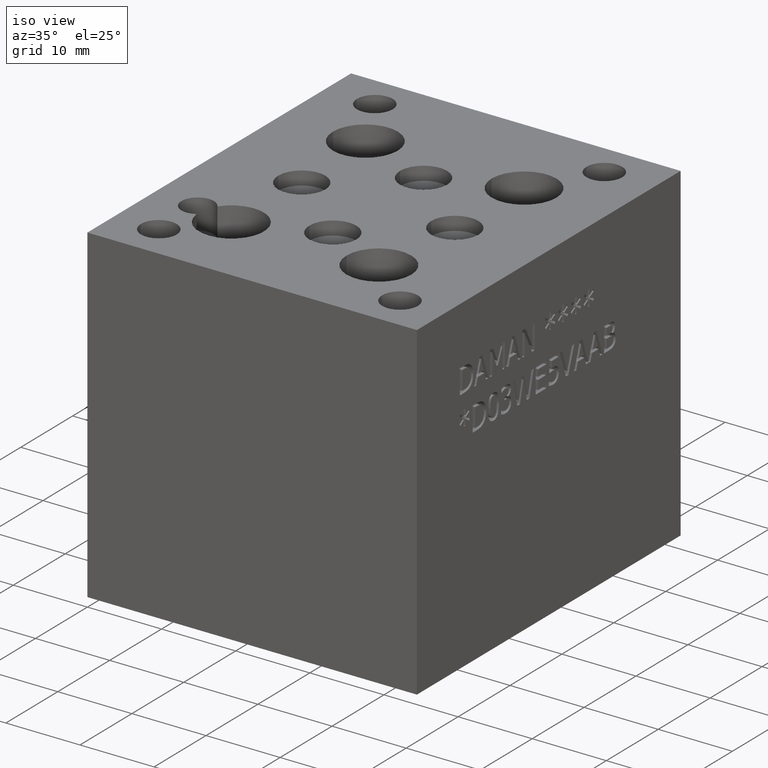
[diagram: clean part render]
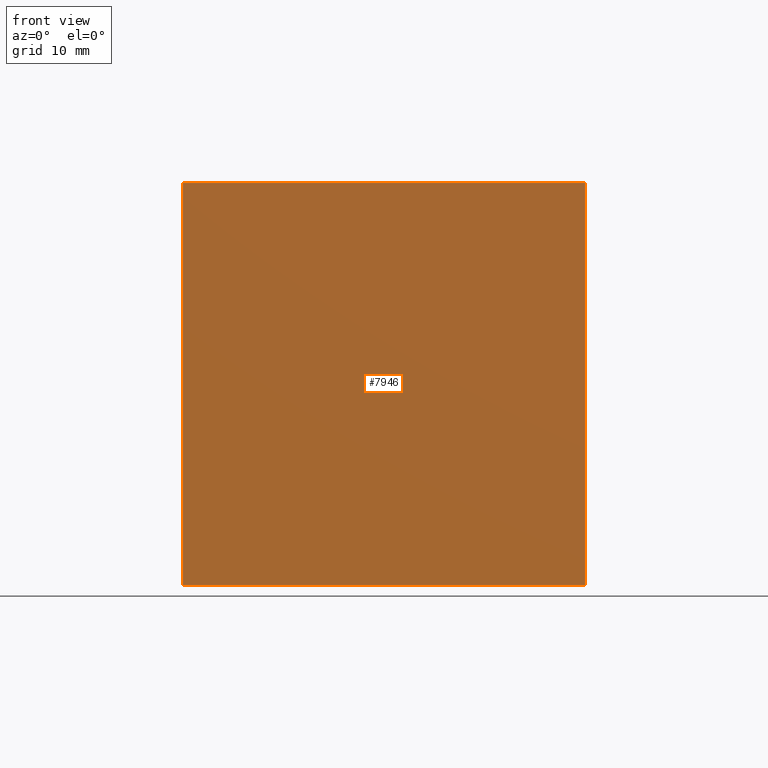
[diagram: tour spotlight — one face highlighted and labeled with its STEP entity id]
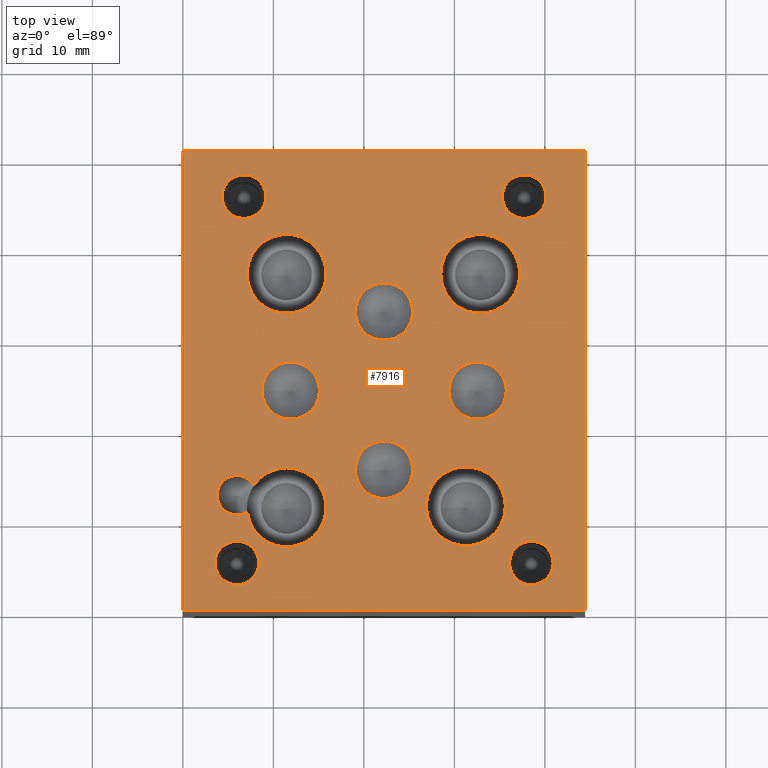
[diagram: tour spotlight — one face highlighted and labeled with its STEP entity id]
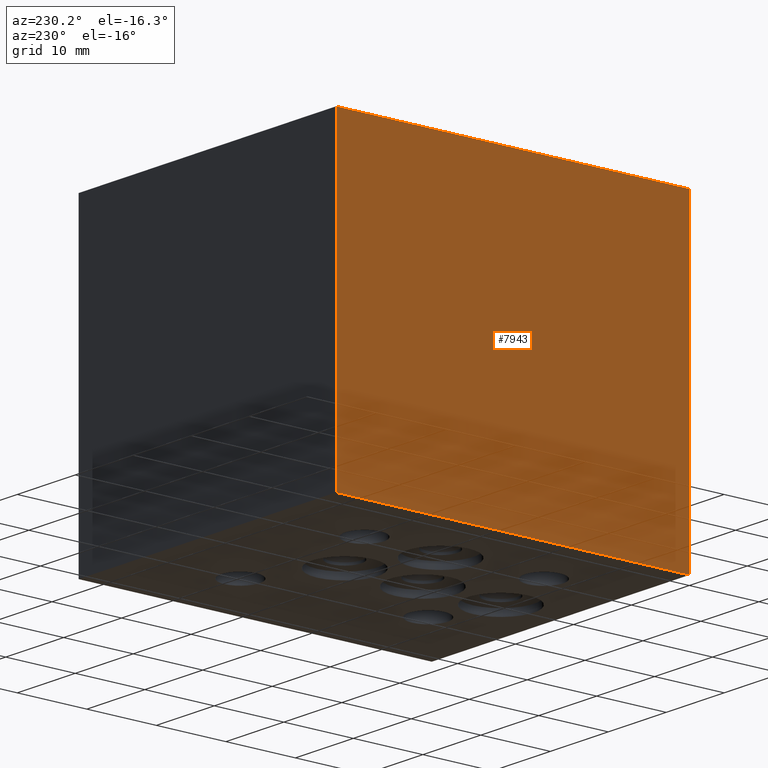
[diagram: tour spotlight — one face highlighted and labeled with its STEP entity id]
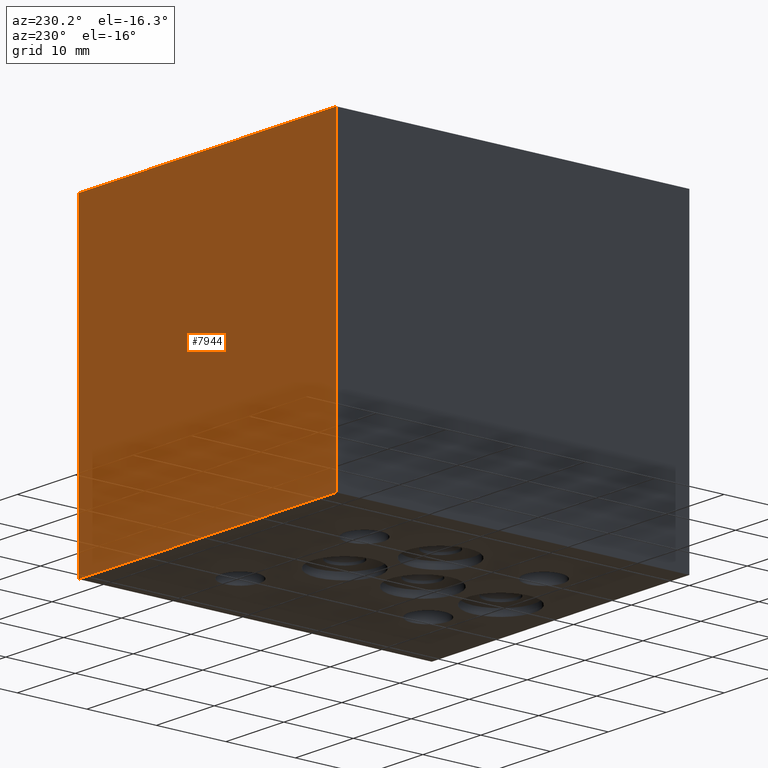
[diagram: tour spotlight — one face highlighted and labeled with its STEP entity id]
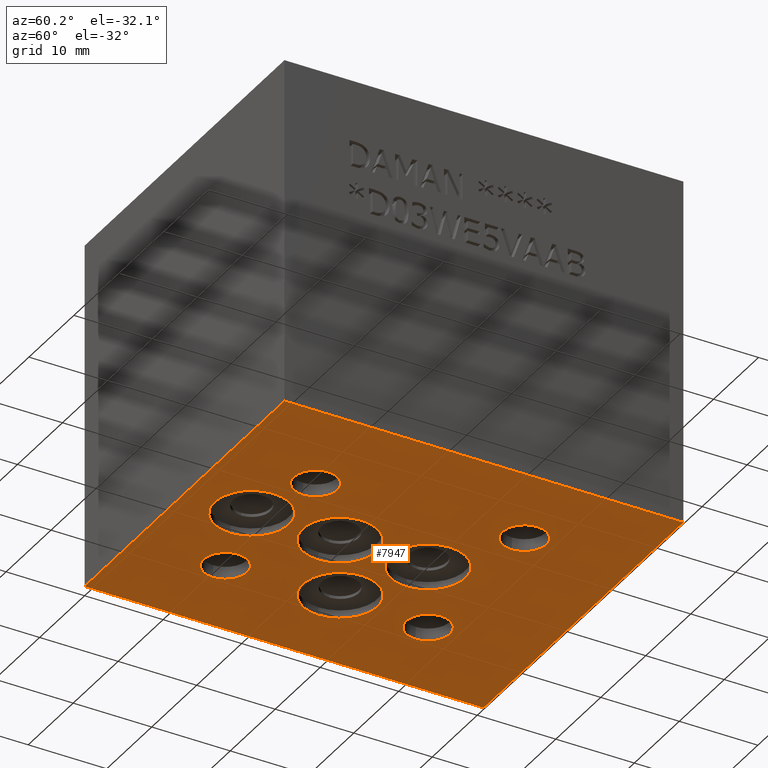
[diagram: tour spotlight — one face highlighted and labeled with its STEP entity id]
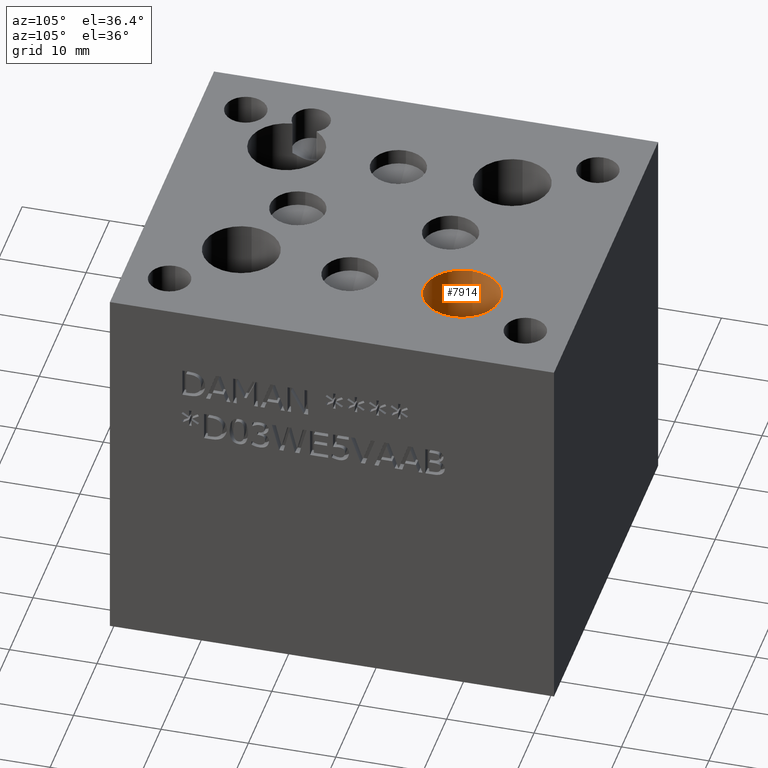
[diagram: tour spotlight — one face highlighted and labeled with its STEP entity id]
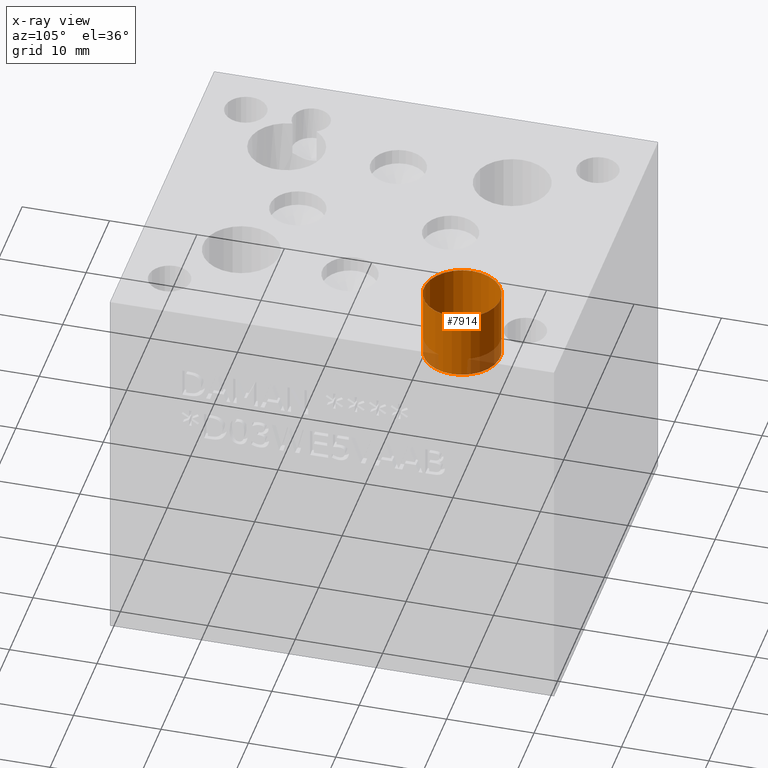
[diagram: x-ray of the same camera — body ghosted, this tour face saturated]
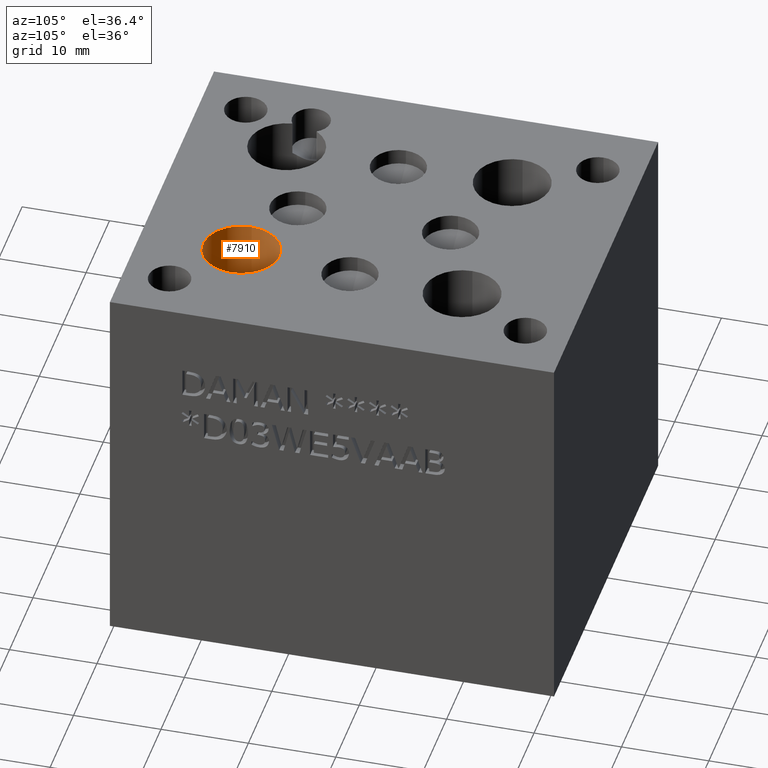
[diagram: tour spotlight — one face highlighted and labeled with its STEP entity id]
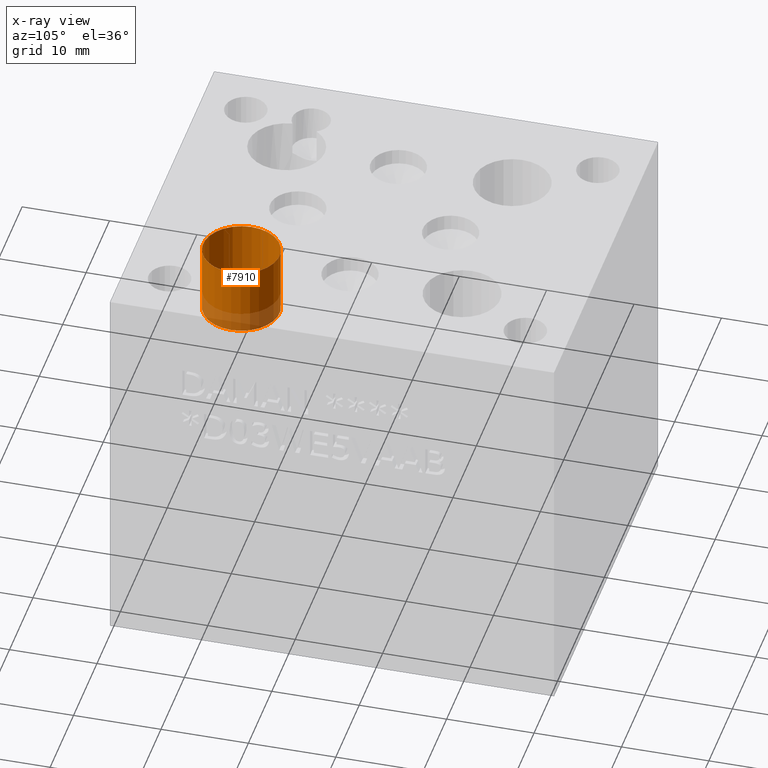
[diagram: x-ray of the same camera — body ghosted, this tour face saturated]
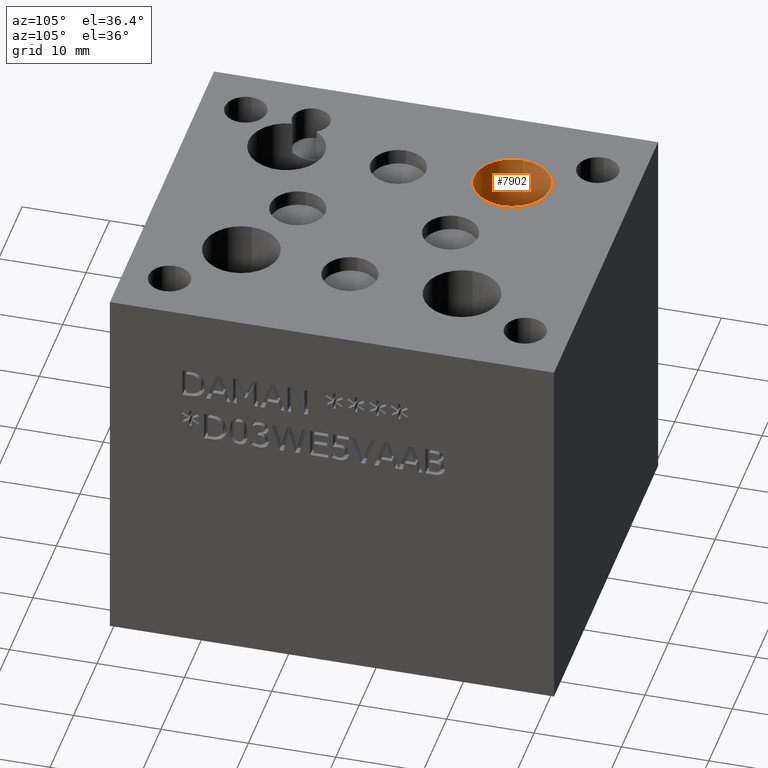
[diagram: tour spotlight — one face highlighted and labeled with its STEP entity id]
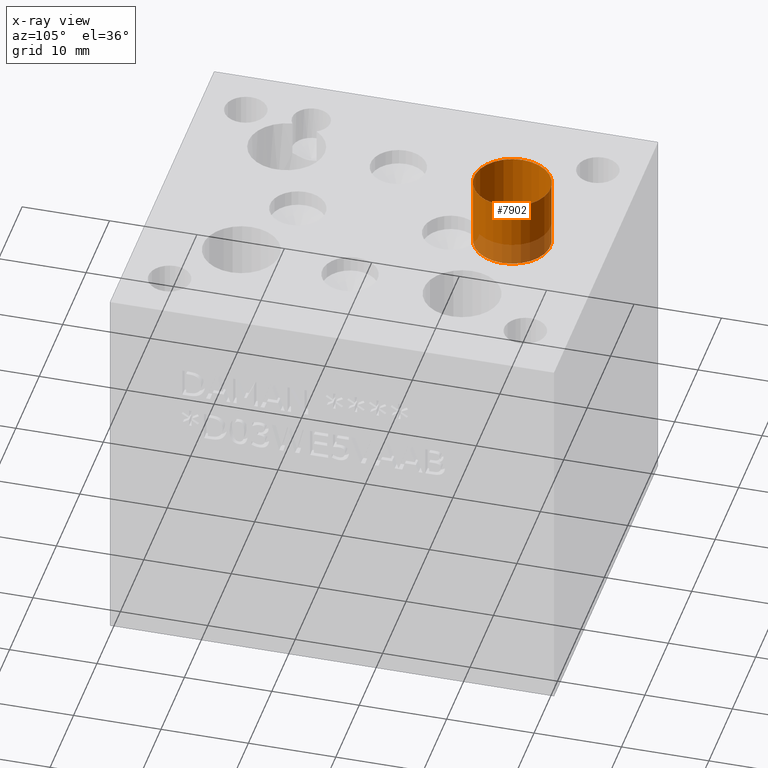
[diagram: x-ray of the same camera — body ghosted, this tour face saturated]
A machine part: a face-by-face anatomy tour. The part has 399 B-rep faces; the first image is the clean iso view, then the 8 largest visible faces are spotlighted one at a time (largest first), each with its STEP entity span.

Face 1 — front view, entity #7946. In plain terms, the highlighted planar face has unit normal (0, -1, 0).
Definition (entity closure, byte-faithful):
#867=FACE_OUTER_BOUND('',#1318,.T.);
#1318=EDGE_LOOP('',(#6935,#6936,#6937,#6938));
#1703=LINE('',#11994,#2519);
#2115=LINE('',#13154,#2931);
#2140=LINE('',#13310,#2956);
#2143=LINE('',#13316,#2959);
#2519=VECTOR('',#9008,10.);
#2931=VECTOR('',#9924,10.);
#2956=VECTOR('',#10097,10.);
#2959=VECTOR('',#10106,10.);
#3296=VERTEX_POINT('',#11987);
#3299=VERTEX_POINT('',#11992);
#3649=VERTEX_POINT('',#13153);
#3706=VERTEX_POINT('',#13308);
#4214=EDGE_CURVE('',#3296,#3299,#1703,.T.);
#4715=EDGE_CURVE('',#3649,#3299,#2115,.T.);
#4787=EDGE_CURVE('',#3706,#3649,#2140,.T.);
#4790=EDGE_CURVE('',#3706,#3296,#2143,.T.);
#6935=ORIENTED_EDGE('',*,*,#4790,.T.);
#6936=ORIENTED_EDGE('',*,*,#4214,.T.);
#6937=ORIENTED_EDGE('',*,*,#4715,.F.);
#6938=ORIENTED_EDGE('',*,*,#4787,.F.);
#7228=PLANE('',#8403);
#7946=ADVANCED_FACE('',(#867),#7228,.T.);
#8403=AXIS2_PLACEMENT_3D('',#13315,#10104,#10105);
#9008=DIRECTION('',(0.,0.,1.));
#9924=DIRECTION('',(1.,0.,0.));
#10097=DIRECTION('',(0.,0.,1.));
#10104=DIRECTION('center_axis',(0.,-1.,0.));
#10105=DIRECTION('ref_axis',(1.,0.,0.));
#10106=DIRECTION('',(1.,0.,0.));
#11987=CARTESIAN_POINT('',(44.45,0.,0.));
#11992=CARTESIAN_POINT('',(44.45,0.,44.45));
#11994=CARTESIAN_POINT('',(44.45,0.,0.));
#13153=CARTESIAN_POINT('',(0.,0.,44.45));
#13154=CARTESIAN_POINT('',(0.,0.,44.45));
#13308=CARTESIAN_POINT('',(0.,0.,0.));
#13310=CARTESIAN_POINT('',(0.,0.,0.));
#13315=CARTESIAN_POINT('Origin',(0.,0.,0.));
#13316=CARTESIAN_POINT('',(0.,0.,0.));

Face 2 — top view, entity #7916. In plain terms, the highlighted planar face has unit normal (0, 0, 1).
Definition (entity closure, byte-faithful):
#84=CIRCLE('',#8291,4.3688);
#85=CIRCLE('',#8292,4.3688);
#91=CIRCLE('',#8302,4.3688);
#97=CIRCLE('',#8312,4.3688);
#98=CIRCLE('',#8313,4.3688);
#104=CIRCLE('',#8323,4.3688);
#105=CIRCLE('',#8324,4.3688);
#106=CIRCLE('',#8327,2.413);
#107=CIRCLE('',#8328,2.413);
#108=CIRCLE('',#8329,2.413);
#109=CIRCLE('',#8330,2.413);
#110=CIRCLE('',#8331,2.413);
#111=CIRCLE('',#8332,2.413);
#112=CIRCLE('',#8333,2.413);
#113=CIRCLE('',#8334,2.413);
#114=CIRCLE('',#8335,2.1844);
#115=CIRCLE('',#8336,3.175);
#116=CIRCLE('',#8337,3.175);
#117=CIRCLE('',#8338,3.175);
#118=CIRCLE('',#8339,3.175);
#119=CIRCLE('',#8340,3.175);
#120=CIRCLE('',#8341,3.175);
#121=CIRCLE('',#8342,3.175);
#122=CIRCLE('',#8343,3.175);
#222=FACE_BOUND('',#1273,.T.);
#223=FACE_BOUND('',#1274,.T.);
#224=FACE_BOUND('',#1275,.T.);
#225=FACE_BOUND('',#1276,.T.);
#226=FACE_BOUND('',#1277,.T.);
#227=FACE_BOUND('',#1278,.T.);
#228=FACE_BOUND('',#1279,.T.);
#229=FACE_BOUND('',#1280,.T.);
#230=FACE_BOUND('',#1281,.T.);
#231=FACE_BOUND('',#1282,.T.);
#232=FACE_BOUND('',#1283,.T.);
#233=FACE_BOUND('',#1284,.T.);
#837=FACE_OUTER_BOUND('',#1272,.T.);
#1272=EDGE_LOOP('',(#6773,#6774,#6775,#6776));
#1273=EDGE_LOOP('',(#6777,#6778));
#1274=EDGE_LOOP('',(#6779,#6780));
#1275=EDGE_LOOP('',(#6781,#6782));
#1276=EDGE_LOOP('',(#6783,#6784));
#1277=EDGE_LOOP('',(#6785,#6786));
#1278=EDGE_LOOP('',(#6787,#6788));
#1279=EDGE_LOOP('',(#6789,#6790));
#1280=EDGE_LOOP('',(#6791,#6792));
#1281=EDGE_LOOP('',(#6793,#6794));
#1282=EDGE_LOOP('',(#6795,#6796));
#1283=EDGE_LOOP('',(#6797,#6798));
#1284=EDGE_LOOP('',(#6799,#6800));
#1702=LINE('',#11993,#2518);
#2115=LINE('',#13154,#2931);
#2116=LINE('',#13156,#2932);
#2117=LINE('',#13157,#2933);
#2518=VECTOR('',#9007,10.);
#2931=VECTOR('',#9924,10.);
#2932=VECTOR('',#9925,10.);
#2933=VECTOR('',#9926,10.);
#3298=VERTEX_POINT('',#11990);
#3299=VERTEX_POINT('',#11992);
#3620=VERTEX_POINT('',#13057);
#3621=VERTEX_POINT('',#13058);
#3629=VERTEX_POINT('',#13080);
#3632=VERTEX_POINT('',#13103);
#3639=VERTEX_POINT('',#13123);
#3640=VERTEX_POINT('',#13124);
#3647=VERTEX_POINT('',#13145);
#3648=VERTEX_POINT('',#13146);
#3649=VERTEX_POINT('',#13153);
#3650=VERTEX_POINT('',#13155);
#3651=VERTEX_POINT('',#13158);
#3652=VERTEX_POINT('',#13159);
#3653=VERTEX_POINT('',#13162);
#3654=VERTEX_POINT('',#13163);
#3655=VERTEX_POINT('',#13166);
#3656=VERTEX_POINT('',#13167);
#3657=VERTEX_POINT('',#13170);
#3658=VERTEX_POINT('',#13171);
#3659=VERTEX_POINT('',#13175);
#3660=VERTEX_POINT('',#13176);
#3661=VERTEX_POINT('',#13179);
#3662=VERTEX_POINT('',#13180);
#3663=VERTEX_POINT('',#13183);
#3664=VERTEX_POINT('',#13184);
#3665=VERTEX_POINT('',#13187);
#3666=VERTEX_POINT('',#13188);
#4213=EDGE_CURVE('',#3299,#3298,#1702,.T.);
#4678=EDGE_CURVE('',#3620,#3621,#84,.T.);
#4679=EDGE_CURVE('',#3621,#3620,#85,.T.);
#4693=EDGE_CURVE('',#3629,#3632,#91,.T.);
#4701=EDGE_CURVE('',#3639,#3640,#97,.T.);
#4702=EDGE_CURVE('',#3640,#3639,#98,.T.);
#4711=EDGE_CURVE('',#3647,#3648,#104,.T.);
#4712=EDGE_CURVE('',#3648,#3647,#105,.T.);
#4715=EDGE_CURVE('',#3649,#3299,#2115,.T.);
#4716=EDGE_CURVE('',#3298,#3650,#2116,.T.);
#4717=EDGE_CURVE('',#3650,#3649,#2117,.T.);
#4718=EDGE_CURVE('',#3651,#3652,#106,.T.);
#4719=EDGE_CURVE('',#3652,#3651,#107,.T.);
#4720=EDGE_CURVE('',#3653,#3654,#108,.T.);
#4721=EDGE_CURVE('',#3654,#3653,#109,.T.);
#4722=EDGE_CURVE('',#3655,#3656,#110,.T.);
#4723=EDGE_CURVE('',#3656,#3655,#111,.T.);
#4724=EDGE_CURVE('',#3657,#3658,#112,.T.);
#4725=EDGE_CURVE('',#3658,#3657,#113,.T.);
#4726=EDGE_CURVE('',#3632,#3629,#114,.T.);
#4727=EDGE_CURVE('',#3659,#3660,#115,.T.);
#4728=EDGE_CURVE('',#3660,#3659,#116,.T.);
#4729=EDGE_CURVE('',#3661,#3662,#117,.T.);
#4730=EDGE_CURVE('',#3662,#3661,#118,.T.);
#4731=EDGE_CURVE('',#3663,#3664,#119,.T.);
#4732=EDGE_CURVE('',#3664,#3663,#120,.T.);
#4733=EDGE_CURVE('',#3665,#3666,#121,.T.);
#4734=EDGE_CURVE('',#3666,#3665,#122,.T.);
#6773=ORIENTED_EDGE('',*,*,#4715,.T.);
#6774=ORIENTED_EDGE('',*,*,#4213,.T.);
#6775=ORIENTED_EDGE('',*,*,#4716,.T.);
#6776=ORIENTED_EDGE('',*,*,#4717,.T.);
#6777=ORIENTED_EDGE('',*,*,#4718,.T.);
#6778=ORIENTED_EDGE('',*,*,#4719,.T.);
#6779=ORIENTED_EDGE('',*,*,#4720,.T.);
#6780=ORIENTED_EDGE('',*,*,#4721,.T.);
#6781=ORIENTED_EDGE('',*,*,#4722,.T.);
#6782=ORIENTED_EDGE('',*,*,#4723,.T.);
#6783=ORIENTED_EDGE('',*,*,#4724,.T.);
#6784=ORIENTED_EDGE('',*,*,#4725,.T.);
#6785=ORIENTED_EDGE('',*,*,#4693,.T.);
#6786=ORIENTED_EDGE('',*,*,#4726,.T.);
#6787=ORIENTED_EDGE('',*,*,#4727,.T.);
#6788=ORIENTED_EDGE('',*,*,#4728,.T.);
#6789=ORIENTED_EDGE('',*,*,#4729,.T.);
#6790=ORIENTED_EDGE('',*,*,#4730,.T.);
#6791=ORIENTED_EDGE('',*,*,#4731,.T.);
#6792=ORIENTED_EDGE('',*,*,#4732,.T.);
#6793=ORIENTED_EDGE('',*,*,#4733,.T.);
#6794=ORIENTED_EDGE('',*,*,#4734,.T.);
#6795=ORIENTED_EDGE('',*,*,#4711,.T.);
#6796=ORIENTED_EDGE('',*,*,#4712,.T.);
#6797=ORIENTED_EDGE('',*,*,#4701,.T.);
#6798=ORIENTED_EDGE('',*,*,#4702,.T.);
#6799=ORIENTED_EDGE('',*,*,#4678,.T.);
#6800=ORIENTED_EDGE('',*,*,#4679,.T.);
#7220=PLANE('',#8326);
#7916=ADVANCED_FACE('',(#837,#222,#223,#224,#225,#226,#227,#228,#229,#230,
#231,#232,#233),#7220,.T.);
#8291=AXIS2_PLACEMENT_3D('',#13059,#9839,#9840);
#8292=AXIS2_PLACEMENT_3D('',#13060,#9841,#9842);
#8302=AXIS2_PLACEMENT_3D('',#13105,#9867,#9868);
#8312=AXIS2_PLACEMENT_3D('',#13125,#9889,#9890);
#8313=AXIS2_PLACEMENT_3D('',#13126,#9891,#9892);
#8323=AXIS2_PLACEMENT_3D('',#13147,#9914,#9915);
#8324=AXIS2_PLACEMENT_3D('',#13148,#9916,#9917);
#8326=AXIS2_PLACEMENT_3D('',#13152,#9922,#9923);
#8327=AXIS2_PLACEMENT_3D('',#13160,#9927,#9928);
#8328=AXIS2_PLACEMENT_3D('',#13161,#9929,#9930);
#8329=AXIS2_PLACEMENT_3D('',#13164,#9931,#9932);
#8330=AXIS2_PLACEMENT_3D('',#13165,#9933,#9934);
#8331=AXIS2_PLACEMENT_3D('',#13168,#9935,#9936);
#8332=AXIS2_PLACEMENT_3D('',#13169,#9937,#9938);
#8333=AXIS2_PLACEMENT_3D('',#13172,#9939,#9940);
#8334=AXIS2_PLACEMENT_3D('',#13173,#9941,#9942);
#8335=AXIS2_PLACEMENT_3D('',#13174,#9943,#9944);
#8336=AXIS2_PLACEMENT_3D('',#13177,#9945,#9946);
#8337=AXIS2_PLACEMENT_3D('',#13178,#9947,#9948);
#8338=AXIS2_PLACEMENT_3D('',#13181,#9949,#9950);
#8339=AXIS2_PLACEMENT_3D('',#13182,#9951,#9952);
#8340=AXIS2_PLACEMENT_3D('',#13185,#9953,#9954);
#8341=AXIS2_PLACEMENT_3D('',#13186,#9955,#9956);
#8342=AXIS2_PLACEMENT_3D('',#13189,#9957,#9958);
#8343=AXIS2_PLACEMENT_3D('',#13190,#9959,#9960);
#9007=DIRECTION('',(0.,1.,0.));
#9839=DIRECTION('center_axis',(0.,0.,-1.));
#9840=DIRECTION('ref_axis',(1.,0.,0.));
#9841=DIRECTION('center_axis',(0.,0.,-1.));
#9842=DIRECTION('ref_axis',(1.,0.,0.));
#9867=DIRECTION('center_axis',(0.,0.,-1.));
#9868=DIRECTION('ref_axis',(1.,0.,0.));
#9889=DIRECTION('center_axis',(0.,0.,-1.));
#9890=DIRECTION('ref_axis',(1.,0.,0.));
#9891=DIRECTION('center_axis',(0.,0.,-1.));
#9892=DIRECTION('ref_axis',(1.,0.,0.));
#9914=DIRECTION('center_axis',(0.,0.,-1.));
#9915=DIRECTION('ref_axis',(1.,0.,0.));
#9916=DIRECTION('center_axis',(0.,0.,-1.));
#9917=DIRECTION('ref_axis',(1.,0.,0.));
#9922=DIRECTION('center_axis',(0.,0.,1.));
#9923=DIRECTION('ref_axis',(1.,0.,0.));
#9924=DIRECTION('',(1.,0.,0.));
#9925=DIRECTION('',(-1.,0.,0.));
#9926=DIRECTION('',(0.,-1.,0.));
#9927=DIRECTION('center_axis',(0.,0.,-1.));
#9928=DIRECTION('ref_axis',(1.,0.,0.));
#9929=DIRECTION('center_axis',(0.,0.,-1.));
#9930=DIRECTION('ref_axis',(1.,0.,0.));
#9931=DIRECTION('center_axis',(0.,0.,-1.));
#9932=DIRECTION('ref_axis',(1.,0.,0.));
#9933=DIRECTION('center_axis',(0.,0.,-1.));
#9934=DIRECTION('ref_axis',(1.,0.,0.));
#9935=DIRECTION('center_axis',(0.,0.,-1.));
#9936=DIRECTION('ref_axis',(1.,0.,0.));
#9937=DIRECTION('center_axis',(0.,0.,-1.));
#9938=DIRECTION('ref_axis',(1.,0.,0.));
#9939=DIRECTION('center_axis',(0.,0.,-1.));
#9940=DIRECTION('ref_axis',(1.,0.,0.));
#9941=DIRECTION('center_axis',(0.,0.,-1.));
#9942=DIRECTION('ref_axis',(1.,0.,0.));
#9943=DIRECTION('center_axis',(0.,0.,-1.));
#9944=DIRECTION('ref_axis',(1.,0.,0.));
#9945=DIRECTION('center_axis',(0.,0.,-1.));
#9946=DIRECTION('ref_axis',(1.,0.,0.));
#9947=DIRECTION('center_axis',(0.,0.,-1.));
#9948=DIRECTION('ref_axis',(1.,0.,0.));
#9949=DIRECTION('center_axis',(0.,0.,-1.));
#9950=DIRECTION('ref_axis',(1.,0.,0.));
#9951=DIRECTION('center_axis',(0.,0.,-1.));
#9952=DIRECTION('ref_axis',(1.,0.,0.));
#9953=DIRECTION('center_axis',(0.,0.,-1.));
#9954=DIRECTION('ref_axis',(1.,0.,0.));
#9955=DIRECTION('center_axis',(0.,0.,-1.));
#9956=DIRECTION('ref_axis',(1.,0.,0.));
#9957=DIRECTION('center_axis',(0.,0.,-1.));
#9958=DIRECTION('ref_axis',(1.,0.,0.));
#9959=DIRECTION('center_axis',(0.,0.,-1.));
#9960=DIRECTION('ref_axis',(1.,0.,0.));
#11990=CARTESIAN_POINT('',(44.45,50.8,44.45));
#11992=CARTESIAN_POINT('',(44.45,0.,44.45));
#11993=CARTESIAN_POINT('',(44.45,0.,44.45));
#13057=CARTESIAN_POINT('',(15.8242,37.1856,44.45));
#13058=CARTESIAN_POINT('',(7.0866,37.1856,44.45));
#13059=CARTESIAN_POINT('Origin',(11.4554,37.1856,44.45));
#13060=CARTESIAN_POINT('Origin',(11.4554,37.1856,44.45));
#13080=CARTESIAN_POINT('',(7.84667365849293,13.8416190610278,44.45));
#13103=CARTESIAN_POINT('',(7.11674902016875,10.8668318557821,44.45));
#13105=CARTESIAN_POINT('Origin',(11.4554,11.3792,44.45));
#13123=CARTESIAN_POINT('',(35.6362,11.5062,44.45));
#13124=CARTESIAN_POINT('',(26.8986,11.5062,44.45));
#13125=CARTESIAN_POINT('Origin',(31.2674,11.5062,44.45));
#13126=CARTESIAN_POINT('Origin',(31.2674,11.5062,44.45));
#13145=CARTESIAN_POINT('',(37.2364,37.1856,44.45));
#13146=CARTESIAN_POINT('',(28.4988,37.1856,44.45));
#13147=CARTESIAN_POINT('Origin',(32.8676,37.1856,44.45));
#13148=CARTESIAN_POINT('Origin',(32.8676,37.1856,44.45));
#13152=CARTESIAN_POINT('Origin',(22.225,25.4,44.45));
#13153=CARTESIAN_POINT('',(0.,0.,44.45));
#13154=CARTESIAN_POINT('',(0.,0.,44.45));
#13155=CARTESIAN_POINT('',(0.,50.8,44.45));
#13156=CARTESIAN_POINT('',(44.45,50.8,44.45));
#13157=CARTESIAN_POINT('',(0.,50.8,44.45));
#13158=CARTESIAN_POINT('',(8.382,5.2324,44.45));
#13159=CARTESIAN_POINT('',(3.556,5.2324,44.45));
#13160=CARTESIAN_POINT('Origin',(5.969,5.2324,44.45));
#13161=CARTESIAN_POINT('Origin',(5.969,5.2324,44.45));
#13162=CARTESIAN_POINT('',(40.132,45.72,44.45));
#13163=CARTESIAN_POINT('',(35.306,45.72,44.45));
#13164=CARTESIAN_POINT('Origin',(37.719,45.72,44.45));
#13165=CARTESIAN_POINT('Origin',(37.719,45.72,44.45));
#13166=CARTESIAN_POINT('',(9.1694,45.72,44.45));
#13167=CARTESIAN_POINT('',(4.3434,45.72,44.45));
#13168=CARTESIAN_POINT('Origin',(6.7564,45.72,44.45));
#13169=CARTESIAN_POINT('Origin',(6.7564,45.72,44.45));
#13170=CARTESIAN_POINT('',(40.9194,5.2324,44.45));
#13171=CARTESIAN_POINT('',(36.0934,5.2324,44.45));
#13172=CARTESIAN_POINT('Origin',(38.5064,5.2324,44.45));
#13173=CARTESIAN_POINT('Origin',(38.5064,5.2324,44.45));
#13174=CARTESIAN_POINT('Origin',(5.969,12.7254,44.45));
#13175=CARTESIAN_POINT('',(25.4,15.5448,44.45));
#13176=CARTESIAN_POINT('',(19.05,15.5448,44.45));
#13177=CARTESIAN_POINT('Origin',(22.225,15.5448,44.45));
#13178=CARTESIAN_POINT('Origin',(22.225,15.5448,44.45));
#13179=CARTESIAN_POINT('',(35.7378,24.2824,44.45));
#13180=CARTESIAN_POINT('',(29.3878,24.2824,44.45));
#13181=CARTESIAN_POINT('Origin',(32.5628,24.2824,44.45));
#13182=CARTESIAN_POINT('Origin',(32.5628,24.2824,44.45));
#13183=CARTESIAN_POINT('',(15.0876,24.2824,44.45));
#13184=CARTESIAN_POINT('',(8.7376,24.2824,44.45));
#13185=CARTESIAN_POINT('Origin',(11.9126,24.2824,44.45));
#13186=CARTESIAN_POINT('Origin',(11.9126,24.2824,44.45));
#13187=CARTESIAN_POINT('',(25.4,33.02,44.45));
#13188=CARTESIAN_POINT('',(19.05,33.02,44.45));
#13189=CARTESIAN_POINT('Origin',(22.225,33.02,44.45));
#13190=CARTESIAN_POINT('Origin',(22.225,33.02,44.45));

Face 3 — auxiliary view, entity #7943. In plain terms, the highlighted planar face has unit normal (-1, 0, 0).
Definition (entity closure, byte-faithful):
#864=FACE_OUTER_BOUND('',#1315,.T.);
#1315=EDGE_LOOP('',(#6924,#6925,#6926,#6927));
#2117=LINE('',#13157,#2933);
#2139=LINE('',#13309,#2955);
#2140=LINE('',#13310,#2956);
#2141=LINE('',#13311,#2957);
#2933=VECTOR('',#9926,10.);
#2955=VECTOR('',#10096,10.);
#2956=VECTOR('',#10097,10.);
#2957=VECTOR('',#10098,10.);
#3649=VERTEX_POINT('',#13153);
#3650=VERTEX_POINT('',#13155);
#3705=VERTEX_POINT('',#13307);
#3706=VERTEX_POINT('',#13308);
#4717=EDGE_CURVE('',#3650,#3649,#2117,.T.);
#4786=EDGE_CURVE('',#3705,#3706,#2139,.T.);
#4787=EDGE_CURVE('',#3706,#3649,#2140,.T.);
#4788=EDGE_CURVE('',#3705,#3650,#2141,.T.);
#6924=ORIENTED_EDGE('',*,*,#4786,.T.);
#6925=ORIENTED_EDGE('',*,*,#4787,.T.);
#6926=ORIENTED_EDGE('',*,*,#4717,.F.);
#6927=ORIENTED_EDGE('',*,*,#4788,.F.);
#7225=PLANE('',#8400);
#7943=ADVANCED_FACE('',(#864),#7225,.T.);
#8400=AXIS2_PLACEMENT_3D('',#13306,#10094,#10095);
#9926=DIRECTION('',(0.,-1.,0.));
#10094=DIRECTION('center_axis',(-1.,0.,0.));
#10095=DIRECTION('ref_axis',(0.,-1.,0.));
#10096=DIRECTION('',(0.,-1.,0.));
#10097=DIRECTION('',(0.,0.,1.));
#10098=DIRECTION('',(0.,0.,1.));
#13153=CARTESIAN_POINT('',(0.,0.,44.45));
#13155=CARTESIAN_POINT('',(0.,50.8,44.45));
#13157=CARTESIAN_POINT('',(0.,50.8,44.45));
#13306=CARTESIAN_POINT('Origin',(0.,50.8,0.));
#13307=CARTESIAN_POINT('',(0.,50.8,0.));
#13308=CARTESIAN_POINT('',(0.,0.,0.));
#13309=CARTESIAN_POINT('',(0.,50.8,0.));
#13310=CARTESIAN_POINT('',(0.,0.,0.));
#13311=CARTESIAN_POINT('',(0.,50.8,0.));

Face 4 — auxiliary view, entity #7944. In plain terms, the highlighted planar face has unit normal (0, 1, 0).
Definition (entity closure, byte-faithful):
#865=FACE_OUTER_BOUND('',#1316,.T.);
#1316=EDGE_LOOP('',(#6928,#6929,#6930,#6931));
#1701=LINE('',#11991,#2517);
#2116=LINE('',#13156,#2932);
#2141=LINE('',#13311,#2957);
#2142=LINE('',#13313,#2958);
#2517=VECTOR('',#9006,10.);
#2932=VECTOR('',#9925,10.);
#2957=VECTOR('',#10098,10.);
#2958=VECTOR('',#10101,10.);
#3297=VERTEX_POINT('',#11988);
#3298=VERTEX_POINT('',#11990);
#3650=VERTEX_POINT('',#13155);
#3705=VERTEX_POINT('',#13307);
#4212=EDGE_CURVE('',#3297,#3298,#1701,.T.);
#4716=EDGE_CURVE('',#3298,#3650,#2116,.T.);
#4788=EDGE_CURVE('',#3705,#3650,#2141,.T.);
#4789=EDGE_CURVE('',#3297,#3705,#2142,.T.);
#6928=ORIENTED_EDGE('',*,*,#4789,.T.);
#6929=ORIENTED_EDGE('',*,*,#4788,.T.);
#6930=ORIENTED_EDGE('',*,*,#4716,.F.);
#6931=ORIENTED_EDGE('',*,*,#4212,.F.);
#7226=PLANE('',#8401);
#7944=ADVANCED_FACE('',(#865),#7226,.T.);
#8401=AXIS2_PLACEMENT_3D('',#13312,#10099,#10100);
#9006=DIRECTION('',(0.,0.,1.));
#9925=DIRECTION('',(-1.,0.,0.));
#10098=DIRECTION('',(0.,0.,1.));
#10099=DIRECTION('center_axis',(0.,1.,0.));
#10100=DIRECTION('ref_axis',(-1.,0.,0.));
#10101=DIRECTION('',(-1.,0.,0.));
#11988=CARTESIAN_POINT('',(44.45,50.8,0.));
#11990=CARTESIAN_POINT('',(44.45,50.8,44.45));
#11991=CARTESIAN_POINT('',(44.45,50.8,0.));
#13155=CARTESIAN_POINT('',(0.,50.8,44.45));
#13156=CARTESIAN_POINT('',(44.45,50.8,44.45));
#13307=CARTESIAN_POINT('',(0.,50.8,0.));
#13311=CARTESIAN_POINT('',(0.,50.8,0.));
#13312=CARTESIAN_POINT('Origin',(44.45,50.8,0.));
#13313=CARTESIAN_POINT('',(44.45,50.8,0.));

Face 5 — auxiliary view, entity #7947. In plain terms, the highlighted planar face has unit normal (0, 0, 1).
Definition (entity closure, byte-faithful):
#35=CIRCLE('',#8216,4.7625);
#36=CIRCLE('',#8217,4.7625);
#40=CIRCLE('',#8223,4.7625);
#41=CIRCLE('',#8224,4.7625);
#45=CIRCLE('',#8230,4.7625);
#46=CIRCLE('',#8231,4.7625);
#50=CIRCLE('',#8237,4.7625);
#51=CIRCLE('',#8238,4.7625);
#65=CIRCLE('',#8263,2.7813);
#66=CIRCLE('',#8264,2.7813);
#69=CIRCLE('',#8269,2.7813);
#70=CIRCLE('',#8270,2.7813);
#73=CIRCLE('',#8275,2.7813);
#74=CIRCLE('',#8276,2.7813);
#77=CIRCLE('',#8281,2.7813);
#78=CIRCLE('',#8282,2.7813);
#238=FACE_BOUND('',#1320,.T.);
#239=FACE_BOUND('',#1321,.T.);
#240=FACE_BOUND('',#1322,.T.);
#241=FACE_BOUND('',#1323,.T.);
#242=FACE_BOUND('',#1324,.T.);
#243=FACE_BOUND('',#1325,.T.);
#244=FACE_BOUND('',#1326,.T.);
#245=FACE_BOUND('',#1327,.T.);
#868=FACE_OUTER_BOUND('',#1319,.T.);
#1319=EDGE_LOOP('',(#6939,#6940,#6941,#6942));
#1320=EDGE_LOOP('',(#6943,#6944));
#1321=EDGE_LOOP('',(#6945,#6946));
#1322=EDGE_LOOP('',(#6947,#6948));
#1323=EDGE_LOOP('',(#6949,#6950));
#1324=EDGE_LOOP('',(#6951,#6952));
#1325=EDGE_LOOP('',(#6953,#6954));
#1326=EDGE_LOOP('',(#6955,#6956));
#1327=EDGE_LOOP('',(#6957,#6958));
#1700=LINE('',#11989,#2516);
#2139=LINE('',#13309,#2955);
#2142=LINE('',#13313,#2958);
#2143=LINE('',#13316,#2959);
#2516=VECTOR('',#9005,10.);
#2955=VECTOR('',#10096,10.);
#2958=VECTOR('',#10101,10.);
#2959=VECTOR('',#10106,10.);
#3296=VERTEX_POINT('',#11987);
#3297=VERTEX_POINT('',#11988);
#3562=VERTEX_POINT('',#12903);
#3563=VERTEX_POINT('',#12904);
#3567=VERTEX_POINT('',#12916);
#3568=VERTEX_POINT('',#12917);
#3572=VERTEX_POINT('',#12929);
#3573=VERTEX_POINT('',#12930);
#3577=VERTEX_POINT('',#12942);
#3578=VERTEX_POINT('',#12943);
#3597=VERTEX_POINT('',#12998);
#3598=VERTEX_POINT('',#12999);
#3602=VERTEX_POINT('',#13011);
#3603=VERTEX_POINT('',#13012);
#3607=VERTEX_POINT('',#13024);
#3608=VERTEX_POINT('',#13025);
#3612=VERTEX_POINT('',#13037);
#3613=VERTEX_POINT('',#13038);
#3705=VERTEX_POINT('',#13307);
#3706=VERTEX_POINT('',#13308);
#4211=EDGE_CURVE('',#3296,#3297,#1700,.T.);
#4608=EDGE_CURVE('',#3562,#3563,#35,.T.);
#4609=EDGE_CURVE('',#3563,#3562,#36,.T.);
#4614=EDGE_CURVE('',#3567,#3568,#40,.T.);
#4615=EDGE_CURVE('',#3568,#3567,#41,.T.);
#4620=EDGE_CURVE('',#3572,#3573,#45,.T.);
#4621=EDGE_CURVE('',#3573,#3572,#46,.T.);
#4626=EDGE_CURVE('',#3577,#3578,#50,.T.);
#4627=EDGE_CURVE('',#3578,#3577,#51,.T.);
#4651=EDGE_CURVE('',#3597,#3598,#65,.T.);
#4652=EDGE_CURVE('',#3598,#3597,#66,.T.);
#4657=EDGE_CURVE('',#3602,#3603,#69,.T.);
#4658=EDGE_CURVE('',#3603,#3602,#70,.T.);
#4663=EDGE_CURVE('',#3607,#3608,#73,.T.);
#4664=EDGE_CURVE('',#3608,#3607,#74,.T.);
#4669=EDGE_CURVE('',#3612,#3613,#77,.T.);
#4670=EDGE_CURVE('',#3613,#3612,#78,.T.);
#4786=EDGE_CURVE('',#3705,#3706,#2139,.T.);
#4789=EDGE_CURVE('',#3297,#3705,#2142,.T.);
#4790=EDGE_CURVE('',#3706,#3296,#2143,.T.);
#6939=ORIENTED_EDGE('',*,*,#4790,.F.);
#6940=ORIENTED_EDGE('',*,*,#4786,.F.);
#6941=ORIENTED_EDGE('',*,*,#4789,.F.);
#6942=ORIENTED_EDGE('',*,*,#4211,.F.);
#6943=ORIENTED_EDGE('',*,*,#4608,.T.);
#6944=ORIENTED_EDGE('',*,*,#4609,.T.);
#6945=ORIENTED_EDGE('',*,*,#4614,.T.);
#6946=ORIENTED_EDGE('',*,*,#4615,.T.);
#6947=ORIENTED_EDGE('',*,*,#4620,.T.);
#6948=ORIENTED_EDGE('',*,*,#4621,.T.);
#6949=ORIENTED_EDGE('',*,*,#4626,.T.);
#6950=ORIENTED_EDGE('',*,*,#4627,.T.);
#6951=ORIENTED_EDGE('',*,*,#4651,.T.);
#6952=ORIENTED_EDGE('',*,*,#4652,.T.);
#6953=ORIENTED_EDGE('',*,*,#4657,.T.);
#6954=ORIENTED_EDGE('',*,*,#4658,.T.);
#6955=ORIENTED_EDGE('',*,*,#4663,.T.);
#6956=ORIENTED_EDGE('',*,*,#4664,.T.);
#6957=ORIENTED_EDGE('',*,*,#4669,.T.);
#6958=ORIENTED_EDGE('',*,*,#4670,.T.);
#7229=PLANE('',#8404);
#7947=ADVANCED_FACE('',(#868,#238,#239,#240,#241,#242,#243,#244,#245),#7229,
 .F.);
#8216=AXIS2_PLACEMENT_3D('',#12905,#9668,#9669);
#8217=AXIS2_PLACEMENT_3D('',#12906,#9670,#9671);
#8223=AXIS2_PLACEMENT_3D('',#12918,#9683,#9684);
#8224=AXIS2_PLACEMENT_3D('',#12919,#9685,#9686);
#8230=AXIS2_PLACEMENT_3D('',#12931,#9698,#9699);
#8231=AXIS2_PLACEMENT_3D('',#12932,#9700,#9701);
#8237=AXIS2_PLACEMENT_3D('',#12944,#9713,#9714);
#8238=AXIS2_PLACEMENT_3D('',#12945,#9715,#9716);
#8263=AXIS2_PLACEMENT_3D('',#13000,#9775,#9776);
#8264=AXIS2_PLACEMENT_3D('',#13001,#9777,#9778);
#8269=AXIS2_PLACEMENT_3D('',#13013,#9789,#9790);
#8270=AXIS2_PLACEMENT_3D('',#13014,#9791,#9792);
#8275=AXIS2_PLACEMENT_3D('',#13026,#9803,#9804);
#8276=AXIS2_PLACEMENT_3D('',#13027,#9805,#9806);
#8281=AXIS2_PLACEMENT_3D('',#13039,#9817,#9818);
#8282=AXIS2_PLACEMENT_3D('',#13040,#9819,#9820);
#8404=AXIS2_PLACEMENT_3D('',#13317,#10107,#10108);
#9005=DIRECTION('',(0.,1.,0.));
#9668=DIRECTION('center_axis',(0.,0.,1.));
#9669=DIRECTION('ref_axis',(1.,0.,0.));
#9670=DIRECTION('center_axis',(0.,0.,1.));
#9671=DIRECTION('ref_axis',(1.,0.,0.));
#9683=DIRECTION('center_axis',(0.,0.,1.));
#9684=DIRECTION('ref_axis',(1.,0.,0.));
#9685=DIRECTION('center_axis',(0.,0.,1.));
#9686=DIRECTION('ref_axis',(1.,0.,0.));
#9698=DIRECTION('center_axis',(0.,0.,1.));
#9699=DIRECTION('ref_axis',(1.,0.,0.));
#9700=DIRECTION('center_axis',(0.,0.,1.));
#9701=DIRECTION('ref_axis',(1.,0.,0.));
#9713=DIRECTION('center_axis',(0.,0.,1.));
#9714=DIRECTION('ref_axis',(1.,0.,0.));
#9715=DIRECTION('center_axis',(0.,0.,1.));
#9716=DIRECTION('ref_axis',(1.,0.,0.));
#9775=DIRECTION('center_axis',(0.,0.,1.));
#9776=DIRECTION('ref_axis',(1.,0.,0.));
#9777=DIRECTION('center_axis',(0.,0.,1.));
#9778=DIRECTION('ref_axis',(1.,0.,0.));
#9789=DIRECTION('center_axis',(0.,0.,1.));
#9790=DIRECTION('ref_axis',(1.,0.,0.));
#9791=DIRECTION('center_axis',(0.,0.,1.));
#9792=DIRECTION('ref_axis',(1.,0.,0.));
#9803=DIRECTION('center_axis',(0.,0.,1.));
#9804=DIRECTION('ref_axis',(1.,0.,0.));
#9805=DIRECTION('center_axis',(0.,0.,1.));
#9806=DIRECTION('ref_axis',(1.,0.,0.));
#9817=DIRECTION('center_axis',(0.,0.,1.));
#9818=DIRECTION('ref_axis',(1.,0.,0.));
#9819=DIRECTION('center_axis',(0.,0.,1.));
#9820=DIRECTION('ref_axis',(1.,0.,0.));
#10096=DIRECTION('',(0.,-1.,0.));
#10101=DIRECTION('',(-1.,0.,0.));
#10106=DIRECTION('',(1.,0.,0.));
#10107=DIRECTION('center_axis',(0.,0.,1.));
#10108=DIRECTION('ref_axis',(1.,0.,0.));
#11987=CARTESIAN_POINT('',(44.45,0.,0.));
#11988=CARTESIAN_POINT('',(44.45,50.8,0.));
#11989=CARTESIAN_POINT('',(44.45,0.,0.));
#12903=CARTESIAN_POINT('',(27.1399,8.47090000000001,0.));
#12904=CARTESIAN_POINT('',(17.6149,8.47090000000001,0.));
#12905=CARTESIAN_POINT('Origin',(22.3774,8.47090000000001,0.));
#12906=CARTESIAN_POINT('Origin',(22.3774,8.47090000000001,0.));
#12916=CARTESIAN_POINT('',(27.1399,30.9245,0.));
#12917=CARTESIAN_POINT('',(17.6149,30.9245,0.));
#12918=CARTESIAN_POINT('Origin',(22.3774,30.9245,0.));
#12919=CARTESIAN_POINT('Origin',(22.3774,30.9245,0.));
#12929=CARTESIAN_POINT('',(27.1399,19.6977,0.));
#12930=CARTESIAN_POINT('',(17.6149,19.6977,0.));
#12931=CARTESIAN_POINT('Origin',(22.3774,19.6977,0.));
#12932=CARTESIAN_POINT('Origin',(22.3774,19.6977,0.));
#12942=CARTESIAN_POINT('',(17.1958,25.4254,0.));
#12943=CARTESIAN_POINT('',(7.6708,25.4254,0.));
#12944=CARTESIAN_POINT('Origin',(12.4333,25.4254,0.));
#12945=CARTESIAN_POINT('Origin',(12.4333,25.4254,0.));
#12998=CARTESIAN_POINT('',(14.2367,37.1856,0.));
#12999=CARTESIAN_POINT('',(8.6741,37.1856,0.));
#13000=CARTESIAN_POINT('Origin',(11.4554,37.1856,0.));
#13001=CARTESIAN_POINT('Origin',(11.4554,37.1856,0.));
#13011=CARTESIAN_POINT('',(35.6489,37.1856,0.));
#13012=CARTESIAN_POINT('',(30.0863,37.1856,0.));
#13013=CARTESIAN_POINT('Origin',(32.8676,37.1856,0.));
#13014=CARTESIAN_POINT('Origin',(32.8676,37.1856,0.));
#13024=CARTESIAN_POINT('',(14.2367,11.3792,0.));
#13025=CARTESIAN_POINT('',(8.6741,11.3792,0.));
#13026=CARTESIAN_POINT('Origin',(11.4554,11.3792,0.));
#13027=CARTESIAN_POINT('Origin',(11.4554,11.3792,0.));
#13037=CARTESIAN_POINT('',(34.0487,11.51636,0.));
#13038=CARTESIAN_POINT('',(28.4861,11.51636,0.));
#13039=CARTESIAN_POINT('Origin',(31.2674,11.51636,0.));
#13040=CARTESIAN_POINT('Origin',(31.2674,11.51636,0.));
#13307=CARTESIAN_POINT('',(0.,50.8,0.));
#13308=CARTESIAN_POINT('',(0.,0.,0.));
#13309=CARTESIAN_POINT('',(0.,50.8,0.));
#13313=CARTESIAN_POINT('',(44.45,50.8,0.));
#13316=CARTESIAN_POINT('',(0.,0.,0.));
#13317=CARTESIAN_POINT('Origin',(22.225,25.4,0.));

Face 6 — auxiliary view, entity #7914. An x-ray twin of the same camera follows (body ghosted, this face saturated) — the face is partly hidden behind the body. In plain terms, the highlighted cylindrical surface (bore or boss wall) has radius 4.3688 mm, axis along (0, 0, 1).
Definition (entity closure, byte-faithful):
#101=CIRCLE('',#8319,4.3688);
#102=CIRCLE('',#8320,4.3688);
#104=CIRCLE('',#8323,4.3688);
#105=CIRCLE('',#8324,4.3688);
#171=CYLINDRICAL_SURFACE('',#8322,4.3688);
#835=FACE_OUTER_BOUND('',#1270,.T.);
#1270=EDGE_LOOP('',(#6762,#6763,#6764,#6765,#6766,#6767));
#2113=LINE('',#13149,#2929);
#2929=VECTOR('',#9918,4.3688);
#3644=VERTEX_POINT('',#13138);
#3645=VERTEX_POINT('',#13139);
#3647=VERTEX_POINT('',#13145);
#3648=VERTEX_POINT('',#13146);
#4708=EDGE_CURVE('',#3644,#3645,#101,.T.);
#4709=EDGE_CURVE('',#3645,#3644,#102,.T.);
#4711=EDGE_CURVE('',#3647,#3648,#104,.T.);
#4712=EDGE_CURVE('',#3648,#3647,#105,.T.);
#4713=EDGE_CURVE('',#3648,#3645,#2113,.T.);
#6762=ORIENTED_EDGE('',*,*,#4711,.F.);
#6763=ORIENTED_EDGE('',*,*,#4712,.F.);
#6764=ORIENTED_EDGE('',*,*,#4713,.T.);
#6765=ORIENTED_EDGE('',*,*,#4708,.F.);
#6766=ORIENTED_EDGE('',*,*,#4709,.F.);
#6767=ORIENTED_EDGE('',*,*,#4713,.F.);
#7914=ADVANCED_FACE('',(#835),#171,.F.);
#8319=AXIS2_PLACEMENT_3D('',#13140,#9906,#9907);
#8320=AXIS2_PLACEMENT_3D('',#13141,#9908,#9909);
#8322=AXIS2_PLACEMENT_3D('',#13144,#9912,#9913);
#8323=AXIS2_PLACEMENT_3D('',#13147,#9914,#9915);
#8324=AXIS2_PLACEMENT_3D('',#13148,#9916,#9917);
#9906=DIRECTION('center_axis',(0.,0.,1.));
#9907=DIRECTION('ref_axis',(1.,0.,0.));
#9908=DIRECTION('center_axis',(0.,0.,1.));
#9909=DIRECTION('ref_axis',(1.,0.,0.));
#9912=DIRECTION('center_axis',(0.,0.,1.));
#9913=DIRECTION('ref_axis',(1.,0.,0.));
#9914=DIRECTION('center_axis',(0.,0.,-1.));
#9915=DIRECTION('ref_axis',(1.,0.,0.));
#9916=DIRECTION('center_axis',(0.,0.,-1.));
#9917=DIRECTION('ref_axis',(1.,0.,0.));
#9918=DIRECTION('',(0.,0.,-1.));
#13138=CARTESIAN_POINT('',(37.2364,37.1856,36.5252));
#13139=CARTESIAN_POINT('',(28.4988,37.1856,36.5252));
#13140=CARTESIAN_POINT('Origin',(32.8676,37.1856,36.5252));
#13141=CARTESIAN_POINT('Origin',(32.8676,37.1856,36.5252));
#13144=CARTESIAN_POINT('Origin',(32.8676,37.1856,40.4876));
#13145=CARTESIAN_POINT('',(37.2364,37.1856,44.45));
#13146=CARTESIAN_POINT('',(28.4988,37.1856,44.45));
#13147=CARTESIAN_POINT('Origin',(32.8676,37.1856,44.45));
#13148=CARTESIAN_POINT('Origin',(32.8676,37.1856,44.45));
#13149=CARTESIAN_POINT('',(28.4988,37.1856,40.4876));

Face 7 — auxiliary view, entity #7910. An x-ray twin of the same camera follows (body ghosted, this face saturated) — the face is partly hidden behind the body. In plain terms, the highlighted cylindrical surface (bore or boss wall) has radius 4.3688 mm, axis along (0, 0, 1).
Definition (entity closure, byte-faithful):
#94=CIRCLE('',#8308,4.3688);
#95=CIRCLE('',#8309,4.3688);
#97=CIRCLE('',#8312,4.3688);
#98=CIRCLE('',#8313,4.3688);
#169=CYLINDRICAL_SURFACE('',#8311,4.3688);
#831=FACE_OUTER_BOUND('',#1265,.T.);
#1265=EDGE_LOOP('',(#6744,#6745,#6746,#6747,#6748,#6749));
#2110=LINE('',#13127,#2926);
#2926=VECTOR('',#9893,4.3688);
#3636=VERTEX_POINT('',#13116);
#3637=VERTEX_POINT('',#13117);
#3639=VERTEX_POINT('',#13123);
#3640=VERTEX_POINT('',#13124);
#4698=EDGE_CURVE('',#3636,#3637,#94,.T.);
#4699=EDGE_CURVE('',#3637,#3636,#95,.T.);
#4701=EDGE_CURVE('',#3639,#3640,#97,.T.);
#4702=EDGE_CURVE('',#3640,#3639,#98,.T.);
#4703=EDGE_CURVE('',#3640,#3637,#2110,.T.);
#6744=ORIENTED_EDGE('',*,*,#4701,.F.);
#6745=ORIENTED_EDGE('',*,*,#4702,.F.);
#6746=ORIENTED_EDGE('',*,*,#4703,.T.);
#6747=ORIENTED_EDGE('',*,*,#4698,.F.);
#6748=ORIENTED_EDGE('',*,*,#4699,.F.);
#6749=ORIENTED_EDGE('',*,*,#4703,.F.);
#7910=ADVANCED_FACE('',(#831),#169,.F.);
#8308=AXIS2_PLACEMENT_3D('',#13118,#9881,#9882);
#8309=AXIS2_PLACEMENT_3D('',#13119,#9883,#9884);
#8311=AXIS2_PLACEMENT_3D('',#13122,#9887,#9888);
#8312=AXIS2_PLACEMENT_3D('',#13125,#9889,#9890);
#8313=AXIS2_PLACEMENT_3D('',#13126,#9891,#9892);
#9881=DIRECTION('center_axis',(0.,0.,1.));
#9882=DIRECTION('ref_axis',(1.,0.,0.));
#9883=DIRECTION('center_axis',(0.,0.,1.));
#9884=DIRECTION('ref_axis',(1.,0.,0.));
#9887=DIRECTION('center_axis',(0.,0.,1.));
#9888=DIRECTION('ref_axis',(1.,0.,0.));
#9889=DIRECTION('center_axis',(0.,0.,-1.));
#9890=DIRECTION('ref_axis',(1.,0.,0.));
#9891=DIRECTION('center_axis',(0.,0.,-1.));
#9892=DIRECTION('ref_axis',(1.,0.,0.));
#9893=DIRECTION('',(0.,0.,-1.));
#13116=CARTESIAN_POINT('',(35.6362,11.5062,36.5252));
#13117=CARTESIAN_POINT('',(26.8986,11.5062,36.5252));
#13118=CARTESIAN_POINT('Origin',(31.2674,11.5062,36.5252));
#13119=CARTESIAN_POINT('Origin',(31.2674,11.5062,36.5252));
#13122=CARTESIAN_POINT('Origin',(31.2674,11.5062,40.4876));
#13123=CARTESIAN_POINT('',(35.6362,11.5062,44.45));
#13124=CARTESIAN_POINT('',(26.8986,11.5062,44.45));
#13125=CARTESIAN_POINT('Origin',(31.2674,11.5062,44.45));
#13126=CARTESIAN_POINT('Origin',(31.2674,11.5062,44.45));
#13127=CARTESIAN_POINT('',(26.8986,11.5062,40.4876));

Face 8 — auxiliary view, entity #7902. An x-ray twin of the same camera follows (body ghosted, this face saturated) — the face is partly hidden behind the body. In plain terms, the highlighted cylindrical surface (bore or boss wall) has radius 4.3688 mm, axis along (0, 0, 1).
Definition (entity closure, byte-faithful):
#81=CIRCLE('',#8287,4.3688);
#82=CIRCLE('',#8288,4.3688);
#84=CIRCLE('',#8291,4.3688);
#85=CIRCLE('',#8292,4.3688);
#165=CYLINDRICAL_SURFACE('',#8290,4.3688);
#823=FACE_OUTER_BOUND('',#1255,.T.);
#1255=EDGE_LOOP('',(#6705,#6706,#6707,#6708,#6709,#6710));
#2102=LINE('',#13061,#2918);
#2918=VECTOR('',#9843,4.3688);
#3617=VERTEX_POINT('',#13050);
#3618=VERTEX_POINT('',#13051);
#3620=VERTEX_POINT('',#13057);
#3621=VERTEX_POINT('',#13058);
#4675=EDGE_CURVE('',#3617,#3618,#81,.T.);
#4676=EDGE_CURVE('',#3618,#3617,#82,.T.);
#4678=EDGE_CURVE('',#3620,#3621,#84,.T.);
#4679=EDGE_CURVE('',#3621,#3620,#85,.T.);
#4680=EDGE_CURVE('',#3621,#3618,#2102,.T.);
#6705=ORIENTED_EDGE('',*,*,#4678,.F.);
#6706=ORIENTED_EDGE('',*,*,#4679,.F.);
#6707=ORIENTED_EDGE('',*,*,#4680,.T.);
#6708=ORIENTED_EDGE('',*,*,#4675,.F.);
#6709=ORIENTED_EDGE('',*,*,#4676,.F.);
#6710=ORIENTED_EDGE('',*,*,#4680,.F.);
#7902=ADVANCED_FACE('',(#823),#165,.F.);
#8287=AXIS2_PLACEMENT_3D('',#13052,#9831,#9832);
#8288=AXIS2_PLACEMENT_3D('',#13053,#9833,#9834);
#8290=AXIS2_PLACEMENT_3D('',#13056,#9837,#9838);
#8291=AXIS2_PLACEMENT_3D('',#13059,#9839,#9840);
#8292=AXIS2_PLACEMENT_3D('',#13060,#9841,#9842);
#9831=DIRECTION('center_axis',(0.,0.,1.));
#9832=DIRECTION('ref_axis',(1.,0.,0.));
#9833=DIRECTION('center_axis',(0.,0.,1.));
#9834=DIRECTION('ref_axis',(1.,0.,0.));
#9837=DIRECTION('center_axis',(0.,0.,1.));
#9838=DIRECTION('ref_axis',(1.,0.,0.));
#9839=DIRECTION('center_axis',(0.,0.,-1.));
#9840=DIRECTION('ref_axis',(1.,0.,0.));
#9841=DIRECTION('center_axis',(0.,0.,-1.));
#9842=DIRECTION('ref_axis',(1.,0.,0.));
#9843=DIRECTION('',(0.,0.,-1.));
#13050=CARTESIAN_POINT('',(15.8242,37.1856,36.5252));
#13051=CARTESIAN_POINT('',(7.0866,37.1856,36.5252));
#13052=CARTESIAN_POINT('Origin',(11.4554,37.1856,36.5252));
#13053=CARTESIAN_POINT('Origin',(11.4554,37.1856,36.5252));
#13056=CARTESIAN_POINT('Origin',(11.4554,37.1856,40.4876));
#13057=CARTESIAN_POINT('',(15.8242,37.1856,44.45));
#13058=CARTESIAN_POINT('',(7.0866,37.1856,44.45));
#13059=CARTESIAN_POINT('Origin',(11.4554,37.1856,44.45));
#13060=CARTESIAN_POINT('Origin',(11.4554,37.1856,44.45));
#13061=CARTESIAN_POINT('',(7.0866,37.1856,40.4876));